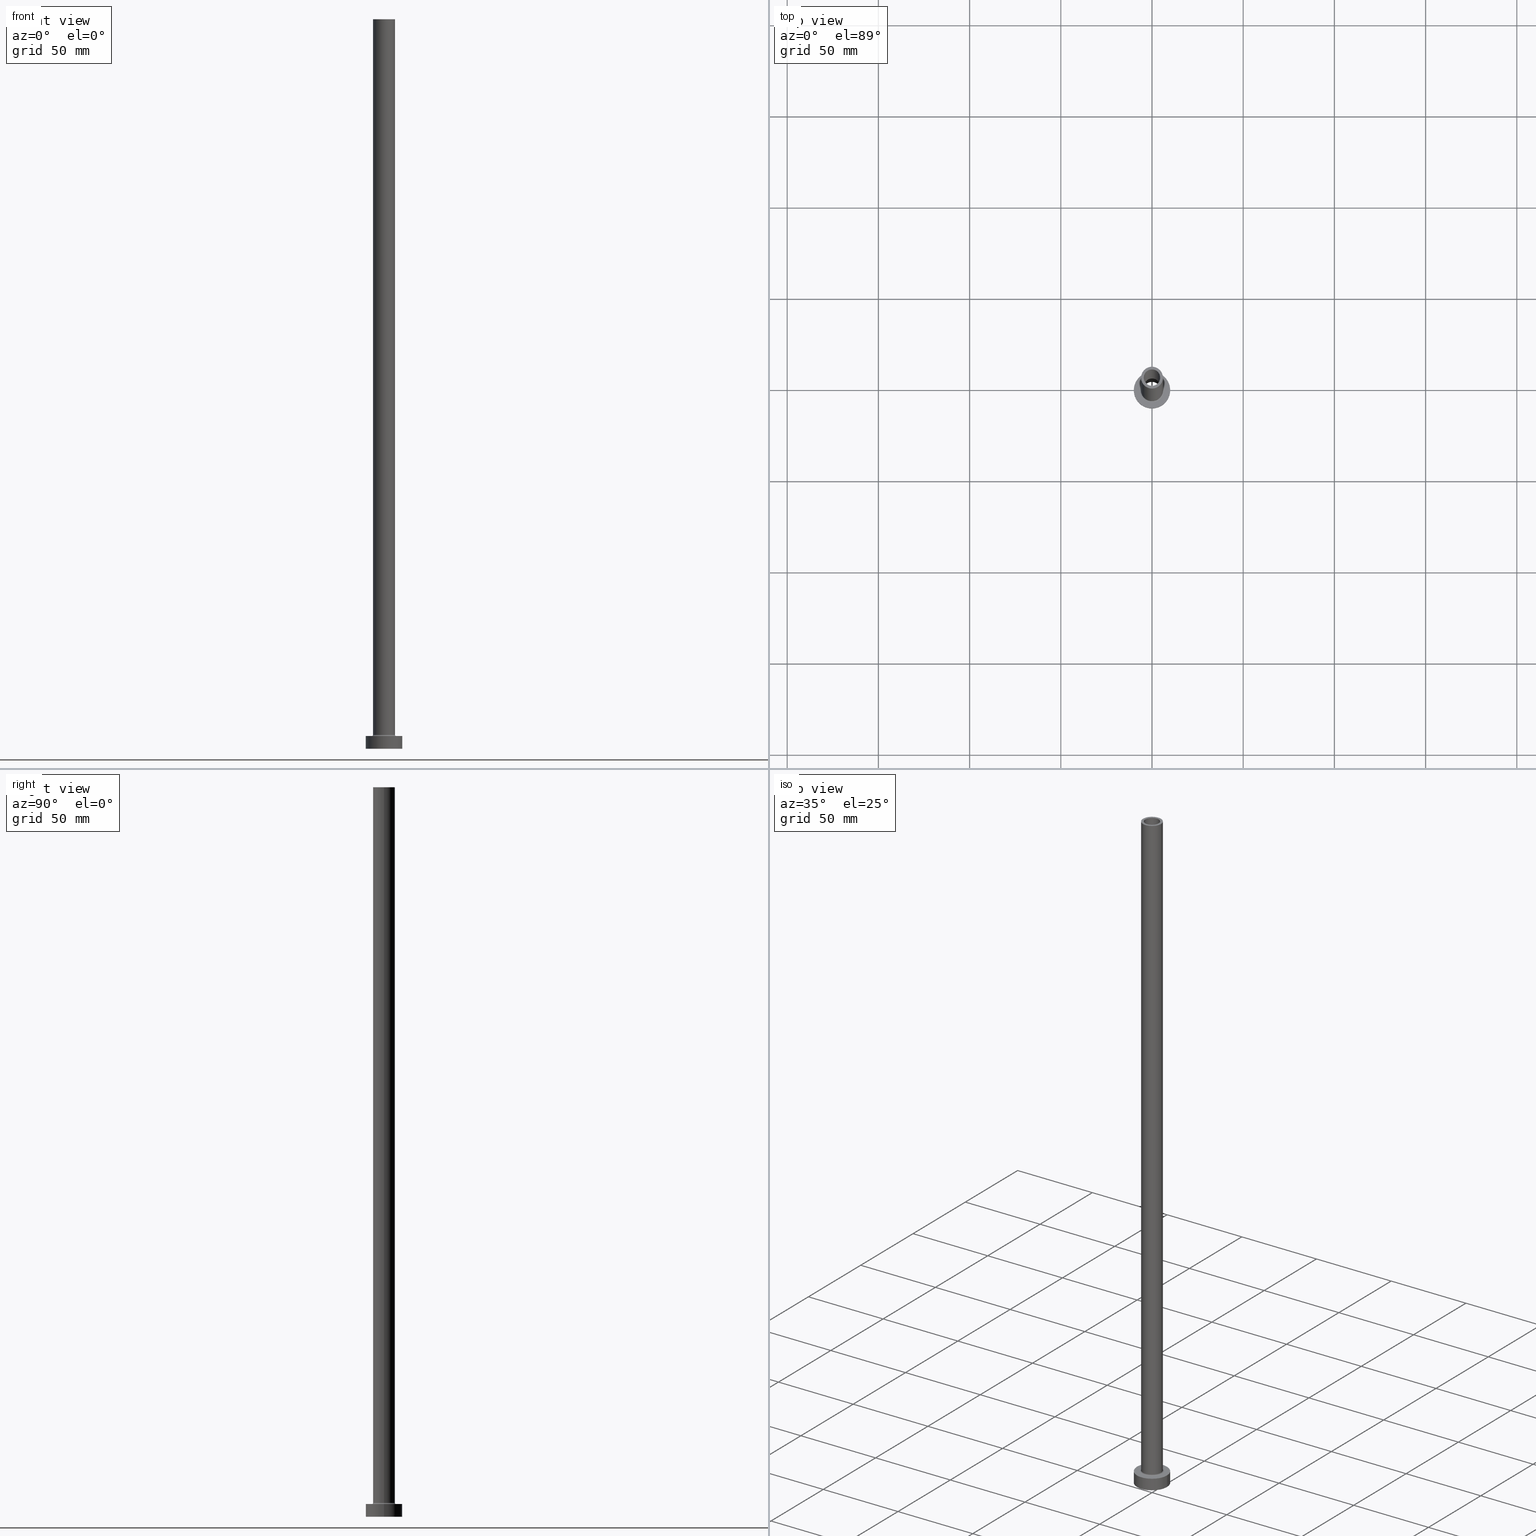
[diagram: canonical four-view strip — front | top / right | iso, engineering-drawing reading convention]
A machine part, canonical four-view strip (front | top / right | iso — engineering-drawing reading convention). The complete STEP part file that produces these views, byte-faithful:
ISO-10303-21;
HEADER;
FILE_DESCRIPTION (( 'STEP AP203' ),
    '1' );
FILE_NAME ('856f.STEP',
    '2023-02-13T11:01:17',
    ( '' ),
    ( '' ),
    'SwSTEP 2.0',
    'SolidWorks 2019',
    '' );
FILE_SCHEMA (( 'CONFIG_CONTROL_DESIGN' ));
ENDSEC;

DATA;
#1 = CYLINDRICAL_SURFACE ( 'NONE', #342, 10.00000000000000000 ) ;
#2 = CYLINDRICAL_SURFACE ( 'NONE', #440, 4.500000000000000000 ) ;
#3 = EDGE_CURVE ( 'NONE', #295, #27, #314, .T. ) ;
#4 = CIRCLE ( 'NONE', #43, 4.500000000000000000 ) ;
#5 = AXIS2_PLACEMENT_3D ( 'NONE', #294, #361, #45 ) ;
#6 = FACE_BOUND ( 'NONE', #320, .T. ) ;
#7 = DIRECTION ( 'NONE',  ( 1.000000000000000000, 0.000000000000000000, 0.000000000000000000 ) ) ;
#8 = PERSON ( 'NEUR�EN�', 'NEUR�EN�', 'NEUR�EN�', ('NEUR�EN�'), ('NEUR�EN�'), ('NEUR�EN�') ) ;
#9 = DIRECTION ( 'NONE',  ( 0.000000000000000000, 0.000000000000000000, 1.000000000000000000 ) ) ;
#10 = VERTEX_POINT ( 'NONE', #393 ) ;
#11 = PERSON_AND_ORGANIZATION_ROLE ( 'design_owner' ) ;
#12 = ORIENTED_EDGE ( 'NONE', *, *, #124, .T. ) ;
#13 = CIRCLE ( 'NONE', #302, 0.7000000000000000666 ) ;
#14 = CARTESIAN_POINT ( 'NONE',  ( 0.000000000000000000, 0.000000000000000000, 7.000000000000000000 ) ) ;
#15 = CARTESIAN_POINT ( 'NONE',  ( -10.00000000000000000, 0.000000000000000000, 7.000000000000000000 ) ) ;
#16 = AXIS2_PLACEMENT_3D ( 'NONE', #343, #305, #279 ) ;
#17 = EDGE_CURVE ( 'NONE', #46, #280, #232, .T. ) ;
#18 = DATE_AND_TIME ( #418, #113 ) ;
#19 = CARTESIAN_POINT ( 'NONE',  ( 0.000000000000000000, 0.000000000000000000, 355.0000000000000568 ) ) ;
#20 = CIRCLE ( 'NONE', #149, 6.000000000000000888 ) ;
#21 = PERSON_AND_ORGANIZATION ( #8, #65 ) ;
#22 = CYLINDRICAL_SURFACE ( 'NONE', #245, 10.00000000000000000 ) ;
#23 = DATE_AND_TIME ( #310, #157 ) ;
#24 = DIRECTION ( 'NONE',  ( 0.000000000000000000, 0.000000000000000000, 1.000000000000000000 ) ) ;
#25 = DIRECTION ( 'NONE',  ( 0.000000000000000000, 0.000000000000000000, 1.000000000000000000 ) ) ;
#26 = SECURITY_CLASSIFICATION ( '', '', #129 ) ;
#27 = VERTEX_POINT ( 'NONE', #184 ) ;
#28 = APPROVAL_ROLE ( '' ) ;
#29 = DIRECTION ( 'NONE',  ( 1.000000000000000000, 0.000000000000000000, -0.000000000000000000 ) ) ;
#30 = DIRECTION ( 'NONE',  ( 1.000000000000000000, 0.000000000000000000, 0.000000000000000000 ) ) ;
#31 = VERTEX_POINT ( 'NONE', #221 ) ;
#32 = DIRECTION ( 'NONE',  ( 1.000000000000000000, 0.000000000000000000, 0.000000000000000000 ) ) ;
#33 = EDGE_LOOP ( 'NONE', ( #264, #226 ) ) ;
#34 = CIRCLE ( 'NONE', #336, 0.7000000000000000666 ) ;
#35 = APPROVAL_PERSON_ORGANIZATION ( #133, #213, #277 ) ;
#36 = DIRECTION ( 'NONE',  ( 0.000000000000000000, 0.000000000000000000, 1.000000000000000000 ) ) ;
#37 = ORIENTED_EDGE ( 'NONE', *, *, #432, .T. ) ;
#38 = DIRECTION ( 'NONE',  ( -0.000000000000000000, -0.000000000000000000, -1.000000000000000000 ) ) ;
#39 = ADVANCED_FACE ( 'NONE', ( #323 ), #2, .F. ) ;
#40 = ORIENTED_EDGE ( 'NONE', *, *, #417, .T. ) ;
#41 = CARTESIAN_POINT ( 'NONE',  ( -10.00000000000000000, 0.000000000000000000, 7.000000000000000000 ) ) ;
#42 = VERTEX_POINT ( 'NONE', #293 ) ;
#43 = AXIS2_PLACEMENT_3D ( 'NONE', #205, #24, #130 ) ;
#44 = AXIS2_PLACEMENT_3D ( 'NONE', #375, #311, #102 ) ;
#45 = DIRECTION ( 'NONE',  ( 1.000000000000000000, 0.000000000000000000, 0.000000000000000000 ) ) ;
#46 = VERTEX_POINT ( 'NONE', #434 ) ;
#47 = CARTESIAN_POINT ( 'NONE',  ( 6.700000000000001066, 0.000000000000000000, 7.699999999999985079 ) ) ;
#48 = EDGE_LOOP ( 'NONE', ( #341, #142 ) ) ;
#49 = EDGE_CURVE ( 'NONE', #362, #295, #259, .T. ) ;
#50 = APPROVAL_ROLE ( '' ) ;
#51 = CARTESIAN_POINT ( 'NONE',  ( 0.000000000000000000, 0.000000000000000000, 0.000000000000000000 ) ) ;
#52 = AXIS2_PLACEMENT_3D ( 'NONE', #147, #181, #324 ) ;
#53 = ADVANCED_FACE ( 'NONE', ( #169 ), #108, .F. ) ;
#54 = CALENDAR_DATE ( 2023, 13, 2 ) ;
#55 = ORIENTED_EDGE ( 'NONE', *, *, #137, .F. ) ;
#56 = COORDINATED_UNIVERSAL_TIME_OFFSET ( 1, 0, .AHEAD. ) ;
#57 = DIRECTION ( 'NONE',  ( 0.000000000000000000, 0.000000000000000000, 1.000000000000000000 ) ) ;
#58 = CC_DESIGN_APPROVAL ( #453, ( #200 ) ) ;
#59 = CARTESIAN_POINT ( 'NONE',  ( 4.500000000000000000, 5.510910596163087583E-16, 400.0000000000000000 ) ) ;
#60 = CARTESIAN_POINT ( 'NONE',  ( 0.000000000000000000, 0.000000000000000000, 0.000000000000000000 ) ) ;
#61 = AXIS2_PLACEMENT_3D ( 'NONE', #199, #335, #7 ) ;
#62 = ORIENTED_EDGE ( 'NONE', *, *, #332, .F. ) ;
#63 = APPROVAL_STATUS ( 'not_yet_approved' ) ;
#64 = CARTESIAN_POINT ( 'NONE',  ( -4.650000000000000355, 0.000000000000000000, 355.0000000000000568 ) ) ;
#65 = ORGANIZATION ( 'NEUR�EN�', 'NEUR�EN�', '' ) ;
#66 = ORIENTED_EDGE ( 'NONE', *, *, #378, .T. ) ;
#67 = DIRECTION ( 'NONE',  ( 1.000000000000000000, 0.000000000000000000, 0.000000000000000000 ) ) ;
#68 = CC_DESIGN_PERSON_AND_ORGANIZATION_ASSIGNMENT ( #96, #92, ( #450 ) ) ;
#69 = ORIENTED_EDGE ( 'NONE', *, *, #247, .F. ) ;
#70 = DIRECTION ( 'NONE',  ( 1.000000000000000000, 0.000000000000000000, 0.000000000000000000 ) ) ;
#71 = ORIENTED_EDGE ( 'NONE', *, *, #397, .T. ) ;
#72 = DIRECTION ( 'NONE',  ( 0.000000000000000000, 0.000000000000000000, 1.000000000000000000 ) ) ;
#73 = ORIENTED_EDGE ( 'NONE', *, *, #410, .F. ) ;
#74 = VECTOR ( 'NONE', #176, 1000.000000000000000 ) ;
#75 = LINE ( 'NONE', #433, #188 ) ;
#76 = ORIENTED_EDGE ( 'NONE', *, *, #187, .T. ) ;
#77 = CC_DESIGN_PERSON_AND_ORGANIZATION_ASSIGNMENT ( #377, #369, ( #200 ) ) ;
#78 = FACE_OUTER_BOUND ( 'NONE', #173, .T. ) ;
#79 = DIRECTION ( 'NONE',  ( 0.000000000000000000, 0.000000000000000000, -1.000000000000000000 ) ) ;
#80 = DIRECTION ( 'NONE',  ( -0.000000000000000000, -0.000000000000000000, -1.000000000000000000 ) ) ;
#81 = ORIENTED_EDGE ( 'NONE', *, *, #160, .F. ) ;
#82 = CIRCLE ( 'NONE', #235, 6.000000000000000888 ) ;
#83 = VERTEX_POINT ( 'NONE', #64 ) ;
#84 = PERSON_AND_ORGANIZATION ( #8, #65 ) ;
#85 = VERTEX_POINT ( 'NONE', #93 ) ;
#86 =( LENGTH_UNIT ( ) NAMED_UNIT ( * ) SI_UNIT ( .MILLI., .METRE. ) );
#87 = CARTESIAN_POINT ( 'NONE',  ( 0.000000000000000000, 0.000000000000000000, 368.1521861300697651 ) ) ;
#88 = EDGE_CURVE ( 'NONE', #362, #122, #364, .T. ) ;
#89 = AXIS2_PLACEMENT_3D ( 'NONE', #110, #355, #457 ) ;
#90 = DATE_AND_TIME ( #238, #290 ) ;
#91 = FACE_OUTER_BOUND ( 'NONE', #155, .T. ) ;
#92 = PERSON_AND_ORGANIZATION_ROLE ( 'design_supplier' ) ;
#93 = CARTESIAN_POINT ( 'NONE',  ( -4.500000000000000000, 0.000000000000000000, 400.0000000000000000 ) ) ;
#94 = CIRCLE ( 'NONE', #350, 4.500000000000000000 ) ;
#95 = CC_DESIGN_PERSON_AND_ORGANIZATION_ASSIGNMENT ( #338, #198, ( #26 ) ) ;
#96 = PERSON_AND_ORGANIZATION ( #8, #65 ) ;
#97 = CARTESIAN_POINT ( 'NONE',  ( 0.000000000000000000, 0.000000000000000000, 400.0000000000000000 ) ) ;
#98 = DIRECTION ( 'NONE',  ( -1.000000000000000000, 0.000000000000000000, 0.000000000000000000 ) ) ;
#99 = AXIS2_PLACEMENT_3D ( 'NONE', #217, #328, #256 ) ;
#100 = ORIENTED_EDGE ( 'NONE', *, *, #124, .F. ) ;
#101 = CC_DESIGN_PERSON_AND_ORGANIZATION_ASSIGNMENT ( #21, #168, ( #450 ) ) ;
#102 = DIRECTION ( 'NONE',  ( -1.000000000000000000, 0.000000000000000000, 0.000000000000000000 ) ) ;
#103 = AXIS2_PLACEMENT_3D ( 'NONE', #460, #214, #30 ) ;
#104 = ORIENTED_EDGE ( 'NONE', *, *, #247, .T. ) ;
#105 = FACE_OUTER_BOUND ( 'NONE', #437, .T. ) ;
#106 = ORIENTED_EDGE ( 'NONE', *, *, #410, .T. ) ;
#107 = CARTESIAN_POINT ( 'NONE',  ( 0.000000000000000000, 0.000000000000000000, 7.000000000000000000 ) ) ;
#108 = TOROIDAL_SURFACE ( 'NONE', #272, 6.700000000000001066, 0.6999999999999999556 ) ;
#109 = EDGE_LOOP ( 'NONE', ( #318, #403 ) ) ;
#110 = CARTESIAN_POINT ( 'NONE',  ( 0.000000000000000000, 0.000000000000000000, 400.0000000000000000 ) ) ;
#111 = DESIGN_CONTEXT ( 'detailed design', #237, 'design' ) ;
#112 = EDGE_LOOP ( 'NONE', ( #435, #76, #326, #55 ) ) ;
#113 = LOCAL_TIME ( 12, 1, 17.00000000000000000, #56 ) ;
#114 = APPROVAL ( #334, 'NEUR�EN�' ) ;
#115 = CARTESIAN_POINT ( 'NONE',  ( -4.650000000000000355, 0.000000000000000000, 368.1521861300697651 ) ) ;
#116 = ORIENTED_EDGE ( 'NONE', *, *, #231, .T. ) ;
#117 = DIRECTION ( 'NONE',  ( 1.000000000000000000, 0.000000000000000000, 0.000000000000000000 ) ) ;
#118 = ORIENTED_EDGE ( 'NONE', *, *, #231, .F. ) ;
#119 = DIRECTION ( 'NONE',  ( 0.000000000000000000, 0.000000000000000000, -1.000000000000000000 ) ) ;
#120 = CC_DESIGN_DATE_AND_TIME_ASSIGNMENT ( #90, #230, ( #26 ) ) ;
#121 = ORIENTED_EDGE ( 'NONE', *, *, #17, .F. ) ;
#122 = VERTEX_POINT ( 'NONE', #379 ) ;
#123 = DIRECTION ( 'NONE',  ( -0.000000000000000000, -0.000000000000000000, -1.000000000000000000 ) ) ;
#124 = EDGE_CURVE ( 'NONE', #209, #83, #220, .T. ) ;
#125 = AXIS2_PLACEMENT_3D ( 'NONE', #452, #136, #449 ) ;
#126 = DIRECTION ( 'NONE',  ( 0.000000000000000000, 0.000000000000000000, 1.000000000000000000 ) ) ;
#127 = DIRECTION ( 'NONE',  ( -1.000000000000000000, 0.000000000000000000, 0.000000000000000000 ) ) ;
#128 = VECTOR ( 'NONE', #273, 1000.000000000000000 ) ;
#129 = SECURITY_CLASSIFICATION_LEVEL ( 'unclassified' ) ;
#130 = DIRECTION ( 'NONE',  ( 1.000000000000000000, 0.000000000000000000, 0.000000000000000000 ) ) ;
#131 = CARTESIAN_POINT ( 'NONE',  ( -6.000000000000000888, 0.000000000000000000, 400.0000000000000000 ) ) ;
#132 = ADVANCED_FACE ( 'NONE', ( #446 ), #206, .T. ) ;
#133 = PERSON_AND_ORGANIZATION ( #8, #65 ) ;
#134 = DIRECTION ( 'NONE',  ( 0.000000000000000000, 0.000000000000000000, 1.000000000000000000 ) ) ;
#135 = AXIS2_PLACEMENT_3D ( 'NONE', #248, #183, #143 ) ;
#136 = DIRECTION ( 'NONE',  ( 0.000000000000000000, 0.000000000000000000, 1.000000000000000000 ) ) ;
#137 = EDGE_CURVE ( 'NONE', #42, #10, #166, .T. ) ;
#138 = CARTESIAN_POINT ( 'NONE',  ( 0.000000000000000000, 0.000000000000000000, 400.0000000000000000 ) ) ;
#139 = ORIENTED_EDGE ( 'NONE', *, *, #270, .T. ) ;
#140 = DIRECTION ( 'NONE',  ( 0.000000000000000000, 0.000000000000000000, 1.000000000000000000 ) ) ;
#141 = CIRCLE ( 'NONE', #179, 4.500000000000000000 ) ;
#142 = ORIENTED_EDGE ( 'NONE', *, *, #265, .T. ) ;
#143 = DIRECTION ( 'NONE',  ( 1.000000000000000000, 0.000000000000000000, -0.000000000000000000 ) ) ;
#144 = EDGE_LOOP ( 'NONE', ( #291, #37, #116, #62 ) ) ;
#145 = FACE_OUTER_BOUND ( 'NONE', #48, .T. ) ;
#146 = ORIENTED_EDGE ( 'NONE', *, *, #88, .T. ) ;
#147 = CARTESIAN_POINT ( 'NONE',  ( 0.000000000000000000, 0.000000000000000000, 400.0000000000000000 ) ) ;
#148 = CARTESIAN_POINT ( 'NONE',  ( 0.000000000000000000, 0.000000000000000000, 400.0000000000000000 ) ) ;
#149 = AXIS2_PLACEMENT_3D ( 'NONE', #351, #425, #218 ) ;
#150 = CARTESIAN_POINT ( 'NONE',  ( 6.000000000000000888, 7.347880794884120722E-16, 400.0000000000000000 ) ) ;
#151 = DIRECTION ( 'NONE',  ( -1.000000000000000000, 0.000000000000000000, 0.000000000000000000 ) ) ;
#152 = EDGE_CURVE ( 'NONE', #456, #31, #420, .T. ) ;
#153 = ORIENTED_EDGE ( 'NONE', *, *, #322, .F. ) ;
#154 = MECHANICAL_CONTEXT ( 'NONE', #441, 'mechanical' ) ;
#155 = EDGE_LOOP ( 'NONE', ( #276, #12, #253, #284 ) ) ;
#156 = AXIS2_PLACEMENT_3D ( 'NONE', #51, #228, #296 ) ;
#157 = LOCAL_TIME ( 12, 1, 17.00000000000000000, #444 ) ;
#158 = CALENDAR_DATE ( 2023, 13, 2 ) ;
#159 = FACE_OUTER_BOUND ( 'NONE', #144, .T. ) ;
#160 = EDGE_CURVE ( 'NONE', #85, #10, #244, .T. ) ;
#161 = DIRECTION ( 'NONE',  ( 0.000000000000000000, 0.000000000000000000, -1.000000000000000000 ) ) ;
#162 = AXIS2_PLACEMENT_3D ( 'NONE', #60, #340, #67 ) ;
#163 = DIRECTION ( 'NONE',  ( -0.000000000000000000, -0.000000000000000000, -1.000000000000000000 ) ) ;
#164 = ADVANCED_FACE ( 'NONE', ( #239, #233 ), #278, .F. ) ;
#165 = DIRECTION ( 'NONE',  ( -1.000000000000000000, 0.000000000000000000, 0.000000000000000000 ) ) ;
#166 = CIRCLE ( 'NONE', #428, 4.500000000000000000 ) ;
#167 = FACE_OUTER_BOUND ( 'NONE', #349, .T. ) ;
#168 = PERSON_AND_ORGANIZATION_ROLE ( 'creator' ) ;
#169 = FACE_OUTER_BOUND ( 'NONE', #182, .T. ) ;
#170 =( GEOMETRIC_REPRESENTATION_CONTEXT ( 3 ) GLOBAL_UNCERTAINTY_ASSIGNED_CONTEXT ( ( #211 ) ) GLOBAL_UNIT_ASSIGNED_CONTEXT ( ( #86, #363, #189 ) ) REPRESENTATION_CONTEXT ( 'NONE', 'WORKASPACE' ) );
#171 = CC_DESIGN_SECURITY_CLASSIFICATION ( #26, ( #450 ) ) ;
#172 = ADVANCED_FACE ( 'NONE', ( #91 ), #208, .F. ) ;
#173 = EDGE_LOOP ( 'NONE', ( #400, #146 ) ) ;
#174 = DIRECTION ( 'NONE',  ( 0.000000000000000000, 0.000000000000000000, 1.000000000000000000 ) ) ;
#175 = ORIENTED_EDGE ( 'NONE', *, *, #270, .F. ) ;
#176 = DIRECTION ( 'NONE',  ( 0.000000000000000000, 0.000000000000000000, -1.000000000000000000 ) ) ;
#177 = DIRECTION ( 'NONE',  ( 1.224646799147353207E-16, 1.000000000000000000, -0.000000000000000000 ) ) ;
#178 = AXIS2_PLACEMENT_3D ( 'NONE', #210, #36, #319 ) ;
#179 = AXIS2_PLACEMENT_3D ( 'NONE', #266, #9, #406 ) ;
#180 = CC_DESIGN_PERSON_AND_ORGANIZATION_ASSIGNMENT ( #263, #11, ( #356 ) ) ;
#181 = DIRECTION ( 'NONE',  ( -0.000000000000000000, -0.000000000000000000, -1.000000000000000000 ) ) ;
#182 = EDGE_LOOP ( 'NONE', ( #345, #139, #421, #73 ) ) ;
#183 = DIRECTION ( 'NONE',  ( 0.000000000000000000, 0.000000000000000000, 1.000000000000000000 ) ) ;
#184 = CARTESIAN_POINT ( 'NONE',  ( -6.000000000000000888, 0.000000000000000000, 7.699999999999985079 ) ) ;
#185 = CARTESIAN_POINT ( 'NONE',  ( 4.650000000000000355, 5.694607616035192869E-16, 0.000000000000000000 ) ) ;
#186 = ORIENTED_EDGE ( 'NONE', *, *, #360, .F. ) ;
#187 = EDGE_CURVE ( 'NONE', #250, #85, #4, .T. ) ;
#188 = VECTOR ( 'NONE', #38, 1000.000000000000000 ) ;
#189 =( NAMED_UNIT ( * ) SI_UNIT ( $, .STERADIAN. ) SOLID_ANGLE_UNIT ( ) );
#190 = ORIENTED_EDGE ( 'NONE', *, *, #88, .F. ) ;
#191 = CARTESIAN_POINT ( 'NONE',  ( -6.700000000000001066, 8.205133554287267548E-16, 6.999999999999992006 ) ) ;
#192 = ORIENTED_EDGE ( 'NONE', *, *, #17, .T. ) ;
#193 = COORDINATED_UNIVERSAL_TIME_OFFSET ( 1, 0, .AHEAD. ) ;
#194 = CIRCLE ( 'NONE', #399, 6.700000000000001066 ) ;
#195 = CARTESIAN_POINT ( 'NONE',  ( 0.000000000000000000, 0.000000000000000000, 7.699999999999985079 ) ) ;
#196 = ADVANCED_FACE ( 'NONE', ( #167 ), #337, .F. ) ;
#197 = DIRECTION ( 'NONE',  ( 1.000000000000000000, 0.000000000000000000, 0.000000000000000000 ) ) ;
#198 = PERSON_AND_ORGANIZATION_ROLE ( 'classification_officer' ) ;
#199 = CARTESIAN_POINT ( 'NONE',  ( 0.000000000000000000, 0.000000000000000000, 7.699999999999985079 ) ) ;
#200 = PRODUCT_DEFINITION ( 'NEZN�M�', '', #450, #111 ) ;
#201 = SHAPE_DEFINITION_REPRESENTATION ( #387, #402 ) ;
#202 = CARTESIAN_POINT ( 'NONE',  ( 0.000000000000000000, 0.000000000000000000, 355.0000000000000568 ) ) ;
#203 = CARTESIAN_POINT ( 'NONE',  ( 0.000000000000000000, 0.000000000000000000, 400.0000000000000000 ) ) ;
#204 = DATE_TIME_ROLE ( 'creation_date' ) ;
#205 = CARTESIAN_POINT ( 'NONE',  ( 0.000000000000000000, 0.000000000000000000, 400.0000000000000000 ) ) ;
#206 = CYLINDRICAL_SURFACE ( 'NONE', #388, 6.000000000000000888 ) ;
#207 = AXIS2_PLACEMENT_3D ( 'NONE', #19, #57, #383 ) ;
#208 = CYLINDRICAL_SURFACE ( 'NONE', #413, 4.650000000000000355 ) ;
#209 = VERTEX_POINT ( 'NONE', #448 ) ;
#210 = CARTESIAN_POINT ( 'NONE',  ( 0.000000000000000000, 0.000000000000000000, 7.000000000000000000 ) ) ;
#211 = UNCERTAINTY_MEASURE_WITH_UNIT (LENGTH_MEASURE( 1.000000000000000082E-05 ), #86, 'distance_accuracy_value', 'NONE');
#212 = ORIENTED_EDGE ( 'NONE', *, *, #405, .T. ) ;
#213 = APPROVAL ( #63, 'NEUR�EN�' ) ;
#214 = DIRECTION ( 'NONE',  ( 0.000000000000000000, 0.000000000000000000, 1.000000000000000000 ) ) ;
#215 = CIRCLE ( 'NONE', #207, 4.650000000000000355 ) ;
#216 = CARTESIAN_POINT ( 'NONE',  ( 0.000000000000000000, 0.000000000000000000, 0.000000000000000000 ) ) ;
#217 = CARTESIAN_POINT ( 'NONE',  ( 0.000000000000000000, 0.000000000000000000, 0.000000000000000000 ) ) ;
#218 = DIRECTION ( 'NONE',  ( 1.000000000000000000, 0.000000000000000000, 0.000000000000000000 ) ) ;
#219 = EDGE_CURVE ( 'NONE', #83, #209, #215, .T. ) ;
#220 = CIRCLE ( 'NONE', #125, 4.650000000000000355 ) ;
#221 = CARTESIAN_POINT ( 'NONE',  ( 6.700000000000001066, 0.000000000000000000, 6.999999999999992006 ) ) ;
#222 = CARTESIAN_POINT ( 'NONE',  ( 6.000000000000000888, 7.347880794884120722E-16, 400.0000000000000000 ) ) ;
#223 = AXIS2_PLACEMENT_3D ( 'NONE', #251, #140, #348 ) ;
#224 = ORIENTED_EDGE ( 'NONE', *, *, #152, .T. ) ;
#225 = APPROVAL_STATUS ( 'not_yet_approved' ) ;
#226 = ORIENTED_EDGE ( 'NONE', *, *, #187, .F. ) ;
#227 = CC_DESIGN_DATE_AND_TIME_ASSIGNMENT ( #374, #204, ( #200 ) ) ;
#228 = DIRECTION ( 'NONE',  ( 0.000000000000000000, 0.000000000000000000, 1.000000000000000000 ) ) ;
#229 = AXIS2_PLACEMENT_3D ( 'NONE', #389, #72, #32 ) ;
#230 = DATE_TIME_ROLE ( 'classification_date' ) ;
#231 = EDGE_CURVE ( 'NONE', #386, #368, #274, .T. ) ;
#232 = CIRCLE ( 'NONE', #99, 10.00000000000000000 ) ;
#233 = FACE_OUTER_BOUND ( 'NONE', #357, .T. ) ;
#234 = AXIS2_PLACEMENT_3D ( 'NONE', #202, #134, #29 ) ;
#235 = AXIS2_PLACEMENT_3D ( 'NONE', #195, #126, #197 ) ;
#236 = DIRECTION ( 'NONE',  ( 1.000000000000000000, 0.000000000000000000, 0.000000000000000000 ) ) ;
#237 = APPLICATION_CONTEXT ( 'configuration controlled 3d designs of mechanical parts and assemblies' ) ;
#238 = CALENDAR_DATE ( 2023, 13, 2 ) ;
#239 = FACE_BOUND ( 'NONE', #109, .T. ) ;
#240 = EDGE_LOOP ( 'NONE', ( #121, #461 ) ) ;
#241 = ADVANCED_FACE ( 'NONE', ( #412 ), #22, .T. ) ;
#242 = DIRECTION ( 'NONE',  ( 1.000000000000000000, 0.000000000000000000, 0.000000000000000000 ) ) ;
#243 = EDGE_LOOP ( 'NONE', ( #429, #224 ) ) ;
#244 = LINE ( 'NONE', #275, #268 ) ;
#245 = AXIS2_PLACEMENT_3D ( 'NONE', #271, #163, #165 ) ;
#246 = FACE_BOUND ( 'NONE', #243, .T. ) ;
#247 = EDGE_CURVE ( 'NONE', #122, #27, #303, .T. ) ;
#248 = CARTESIAN_POINT ( 'NONE',  ( 0.000000000000000000, 0.000000000000000000, 7.000000000000000000 ) ) ;
#249 = CLOSED_SHELL ( 'NONE', ( #196, #445, #53, #132, #241, #297, #313, #390, #281, #339, #306, #172, #164, #39 ) ) ;
#250 = VERTEX_POINT ( 'NONE', #59 ) ;
#251 = CARTESIAN_POINT ( 'NONE',  ( 0.000000000000000000, 0.000000000000000000, 0.000000000000000000 ) ) ;
#252 = APPROVAL_PERSON_ORGANIZATION ( #308, #114, #28 ) ;
#253 = ORIENTED_EDGE ( 'NONE', *, *, #332, .T. ) ;
#254 = EDGE_CURVE ( 'NONE', #85, #250, #94, .T. ) ;
#255 = PLANE ( 'NONE',  #89 ) ;
#256 = DIRECTION ( 'NONE',  ( 1.000000000000000000, 0.000000000000000000, 0.000000000000000000 ) ) ;
#257 = FACE_OUTER_BOUND ( 'NONE', #240, .T. ) ;
#258 = AXIS2_PLACEMENT_3D ( 'NONE', #97, #174, #415 ) ;
#259 = LINE ( 'NONE', #222, #411 ) ;
#260 = CARTESIAN_POINT ( 'NONE',  ( 4.650000000000000355, 5.694607616035192869E-16, 368.1521861300697651 ) ) ;
#261 = EDGE_LOOP ( 'NONE', ( #190, #416, #458, #69 ) ) ;
#262 = LOCAL_TIME ( 12, 1, 17.00000000000000000, #193 ) ;
#263 = PERSON_AND_ORGANIZATION ( #8, #65 ) ;
#264 = ORIENTED_EDGE ( 'NONE', *, *, #254, .F. ) ;
#265 = EDGE_CURVE ( 'NONE', #354, #380, #372, .T. ) ;
#266 = CARTESIAN_POINT ( 'NONE',  ( 0.000000000000000000, 0.000000000000000000, 355.0000000000000568 ) ) ;
#267 = LINE ( 'NONE', #260, #414 ) ;
#268 = VECTOR ( 'NONE', #304, 1000.000000000000000 ) ;
#269 = APPLICATION_PROTOCOL_DEFINITION ( 'international standard', 'config_control_design', 1994, #441 ) ;
#270 = EDGE_CURVE ( 'NONE', #27, #456, #13, .T. ) ;
#271 = CARTESIAN_POINT ( 'NONE',  ( 0.000000000000000000, 0.000000000000000000, 7.000000000000000000 ) ) ;
#272 = AXIS2_PLACEMENT_3D ( 'NONE', #455, #422, #242 ) ;
#273 = DIRECTION ( 'NONE',  ( -0.000000000000000000, -0.000000000000000000, -1.000000000000000000 ) ) ;
#274 = CIRCLE ( 'NONE', #162, 4.650000000000000355 ) ;
#275 = CARTESIAN_POINT ( 'NONE',  ( -4.500000000000000000, 0.000000000000000000, 400.0000000000000000 ) ) ;
#276 = ORIENTED_EDGE ( 'NONE', *, *, #432, .F. ) ;
#277 = APPROVAL_ROLE ( '' ) ;
#278 = PLANE ( 'NONE',  #234 ) ;
#279 = DIRECTION ( 'NONE',  ( 1.000000000000000000, 0.000000000000000000, 0.000000000000000000 ) ) ;
#280 = VERTEX_POINT ( 'NONE', #285 ) ;
#281 = ADVANCED_FACE ( 'NONE', ( #426 ), #346, .T. ) ;
#282 = PLANE ( 'NONE',  #135 ) ;
#283 = CIRCLE ( 'NONE', #358, 4.650000000000000355 ) ;
#284 = ORIENTED_EDGE ( 'NONE', *, *, #322, .T. ) ;
#285 = CARTESIAN_POINT ( 'NONE',  ( 10.00000000000000000, 1.224646799147353256E-15, 0.000000000000000000 ) ) ;
#286 = ORIENTED_EDGE ( 'NONE', *, *, #219, .F. ) ;
#287 = LINE ( 'NONE', #115, #74 ) ;
#288 = ORIENTED_EDGE ( 'NONE', *, *, #352, .F. ) ;
#289 = MANIFOLD_SOLID_BREP ( 'Odebrat vysunut�m4', #249 ) ;
#290 = LOCAL_TIME ( 12, 1, 17.00000000000000000, #367 ) ;
#291 = ORIENTED_EDGE ( 'NONE', *, *, #219, .T. ) ;
#292 = CARTESIAN_POINT ( 'NONE',  ( -6.700000000000001066, 8.205133554287267548E-16, 7.699999999999985079 ) ) ;
#293 = CARTESIAN_POINT ( 'NONE',  ( 4.500000000000000000, 5.510910596163087583E-16, 355.0000000000000568 ) ) ;
#294 = CARTESIAN_POINT ( 'NONE',  ( 0.000000000000000000, 0.000000000000000000, 0.000000000000000000 ) ) ;
#295 = VERTEX_POINT ( 'NONE', #317 ) ;
#296 = DIRECTION ( 'NONE',  ( 1.000000000000000000, 0.000000000000000000, -0.000000000000000000 ) ) ;
#297 = ADVANCED_FACE ( 'NONE', ( #105 ), #1, .T. ) ;
#298 = ORIENTED_EDGE ( 'NONE', *, *, #49, .F. ) ;
#299 = DATE_AND_TIME ( #158, #262 ) ;
#300 = PRODUCT_RELATED_PRODUCT_CATEGORY ( 'detail', '', ( #356 ) ) ;
#301 = CYLINDRICAL_SURFACE ( 'NONE', #325, 4.650000000000000355 ) ;
#302 = AXIS2_PLACEMENT_3D ( 'NONE', #292, #177, #353 ) ;
#303 = LINE ( 'NONE', #131, #128 ) ;
#304 = DIRECTION ( 'NONE',  ( 0.000000000000000000, 0.000000000000000000, -1.000000000000000000 ) ) ;
#305 = DIRECTION ( 'NONE',  ( -0.000000000000000000, -0.000000000000000000, -1.000000000000000000 ) ) ;
#306 = ADVANCED_FACE ( 'NONE', ( #459 ), #407, .F. ) ;
#307 = VECTOR ( 'NONE', #161, 1000.000000000000000 ) ;
#308 = PERSON_AND_ORGANIZATION ( #8, #65 ) ;
#309 = CARTESIAN_POINT ( 'NONE',  ( 0.000000000000000000, 0.000000000000000000, 355.0000000000000568 ) ) ;
#310 = CALENDAR_DATE ( 2023, 13, 2 ) ;
#311 = DIRECTION ( 'NONE',  ( 0.000000000000000000, 0.000000000000000000, -1.000000000000000000 ) ) ;
#312 = ORIENTED_EDGE ( 'NONE', *, *, #3, .F. ) ;
#313 = ADVANCED_FACE ( 'NONE', ( #246, #145 ), #282, .T. ) ;
#314 = CIRCLE ( 'NONE', #61, 6.000000000000000888 ) ;
#315 = FACE_BOUND ( 'NONE', #33, .T. ) ;
#316 = ORIENTED_EDGE ( 'NONE', *, *, #378, .F. ) ;
#317 = CARTESIAN_POINT ( 'NONE',  ( 6.000000000000000888, 7.347880794884120722E-16, 7.699999999999985079 ) ) ;
#318 = ORIENTED_EDGE ( 'NONE', *, *, #427, .T. ) ;
#319 = DIRECTION ( 'NONE',  ( 1.000000000000000000, 0.000000000000000000, 0.000000000000000000 ) ) ;
#320 = EDGE_LOOP ( 'NONE', ( #153, #118 ) ) ;
#321 = DIRECTION ( 'NONE',  ( 0.000000000000000000, 0.000000000000000000, 1.000000000000000000 ) ) ;
#322 = EDGE_CURVE ( 'NONE', #368, #386, #283, .T. ) ;
#323 = FACE_OUTER_BOUND ( 'NONE', #112, .T. ) ;
#324 = DIRECTION ( 'NONE',  ( -1.000000000000000000, 0.000000000000000000, 0.000000000000000000 ) ) ;
#325 = AXIS2_PLACEMENT_3D ( 'NONE', #87, #119, #127 ) ;
#326 = ORIENTED_EDGE ( 'NONE', *, *, #160, .T. ) ;
#327 = LINE ( 'NONE', #365, #307 ) ;
#328 = DIRECTION ( 'NONE',  ( 0.000000000000000000, 0.000000000000000000, 1.000000000000000000 ) ) ;
#329 = EDGE_LOOP ( 'NONE', ( #431, #66, #395, #384 ) ) ;
#330 = DIRECTION ( 'NONE',  ( -0.000000000000000000, -0.000000000000000000, -1.000000000000000000 ) ) ;
#331 = DIRECTION ( 'NONE',  ( 0.000000000000000000, 0.000000000000000000, -1.000000000000000000 ) ) ;
#332 = EDGE_CURVE ( 'NONE', #83, #368, #287, .T. ) ;
#333 = DIRECTION ( 'NONE',  ( 1.000000000000000000, 0.000000000000000000, 0.000000000000000000 ) ) ;
#334 = APPROVAL_STATUS ( 'not_yet_approved' ) ;
#335 = DIRECTION ( 'NONE',  ( 0.000000000000000000, 0.000000000000000000, 1.000000000000000000 ) ) ;
#336 = AXIS2_PLACEMENT_3D ( 'NONE', #47, #442, #404 ) ;
#337 = CYLINDRICAL_SURFACE ( 'NONE', #44, 4.500000000000000000 ) ;
#338 = PERSON_AND_ORGANIZATION ( #8, #65 ) ;
#339 = ADVANCED_FACE ( 'NONE', ( #315, #78 ), #255, .T. ) ;
#340 = DIRECTION ( 'NONE',  ( -0.000000000000000000, -0.000000000000000000, -1.000000000000000000 ) ) ;
#341 = ORIENTED_EDGE ( 'NONE', *, *, #352, .T. ) ;
#342 = AXIS2_PLACEMENT_3D ( 'NONE', #107, #80, #430 ) ;
#343 = CARTESIAN_POINT ( 'NONE',  ( 0.000000000000000000, 0.000000000000000000, 7.000000000000000000 ) ) ;
#344 = EDGE_CURVE ( 'NONE', #280, #46, #424, .T. ) ;
#345 = ORIENTED_EDGE ( 'NONE', *, *, #397, .F. ) ;
#346 = CYLINDRICAL_SURFACE ( 'NONE', #52, 6.000000000000000888 ) ;
#347 = ORIENTED_EDGE ( 'NONE', *, *, #254, .T. ) ;
#348 = DIRECTION ( 'NONE',  ( 1.000000000000000000, 0.000000000000000000, 0.000000000000000000 ) ) ;
#349 = EDGE_LOOP ( 'NONE', ( #347, #212, #423, #81 ) ) ;
#350 = AXIS2_PLACEMENT_3D ( 'NONE', #203, #321, #117 ) ;
#351 = CARTESIAN_POINT ( 'NONE',  ( 0.000000000000000000, 0.000000000000000000, 400.0000000000000000 ) ) ;
#352 = EDGE_CURVE ( 'NONE', #380, #354, #381, .T. ) ;
#353 = DIRECTION ( 'NONE',  ( -1.000000000000000000, 1.224646799147353454E-16, 0.000000000000000000 ) ) ;
#354 = VERTEX_POINT ( 'NONE', #394 ) ;
#355 = DIRECTION ( 'NONE',  ( 0.000000000000000000, 0.000000000000000000, 1.000000000000000000 ) ) ;
#356 = PRODUCT ( '856f', '856f', '', ( #154 ) ) ;
#357 = EDGE_LOOP ( 'NONE', ( #286, #100 ) ) ;
#358 = AXIS2_PLACEMENT_3D ( 'NONE', #216, #385, #70 ) ;
#359 = DIRECTION ( 'NONE',  ( -0.000000000000000000, -0.000000000000000000, -1.000000000000000000 ) ) ;
#360 = EDGE_CURVE ( 'NONE', #122, #362, #20, .T. ) ;
#361 = DIRECTION ( 'NONE',  ( 0.000000000000000000, 0.000000000000000000, 1.000000000000000000 ) ) ;
#362 = VERTEX_POINT ( 'NONE', #150 ) ;
#363 =( NAMED_UNIT ( * ) PLANE_ANGLE_UNIT ( ) SI_UNIT ( $, .RADIAN. ) );
#364 = CIRCLE ( 'NONE', #258, 6.000000000000000888 ) ;
#365 = CARTESIAN_POINT ( 'NONE',  ( 4.500000000000000000, 5.510910596163087583E-16, 400.0000000000000000 ) ) ;
#366 = CC_DESIGN_APPROVAL ( #114, ( #450 ) ) ;
#367 = COORDINATED_UNIVERSAL_TIME_OFFSET ( 1, 0, .AHEAD. ) ;
#368 = VERTEX_POINT ( 'NONE', #392 ) ;
#369 = PERSON_AND_ORGANIZATION_ROLE ( 'creator' ) ;
#370 = CARTESIAN_POINT ( 'NONE',  ( 0.000000000000000000, 0.000000000000000000, 368.1521861300697651 ) ) ;
#371 = LOCAL_TIME ( 12, 1, 17.00000000000000000, #408 ) ;
#372 = CIRCLE ( 'NONE', #178, 10.00000000000000000 ) ;
#373 = DIRECTION ( 'NONE',  ( -1.000000000000000000, 0.000000000000000000, 0.000000000000000000 ) ) ;
#374 = DATE_AND_TIME ( #54, #371 ) ;
#375 = CARTESIAN_POINT ( 'NONE',  ( 0.000000000000000000, 0.000000000000000000, 400.0000000000000000 ) ) ;
#376 = EDGE_LOOP ( 'NONE', ( #298, #186, #104, #71 ) ) ;
#377 = PERSON_AND_ORGANIZATION ( #8, #65 ) ;
#378 = EDGE_CURVE ( 'NONE', #354, #280, #75, .T. ) ;
#379 = CARTESIAN_POINT ( 'NONE',  ( -6.000000000000000888, 0.000000000000000000, 400.0000000000000000 ) ) ;
#380 = VERTEX_POINT ( 'NONE', #41 ) ;
#381 = CIRCLE ( 'NONE', #229, 10.00000000000000000 ) ;
#382 = CC_DESIGN_APPROVAL ( #213, ( #26 ) ) ;
#383 = DIRECTION ( 'NONE',  ( 1.000000000000000000, 0.000000000000000000, 0.000000000000000000 ) ) ;
#384 = ORIENTED_EDGE ( 'NONE', *, *, #417, .F. ) ;
#385 = DIRECTION ( 'NONE',  ( -0.000000000000000000, -0.000000000000000000, -1.000000000000000000 ) ) ;
#386 = VERTEX_POINT ( 'NONE', #185 ) ;
#387 = PRODUCT_DEFINITION_SHAPE ( 'NONE', 'NONE',  #200 ) ;
#388 = AXIS2_PLACEMENT_3D ( 'NONE', #138, #409, #373 ) ;
#389 = CARTESIAN_POINT ( 'NONE',  ( 0.000000000000000000, 0.000000000000000000, 7.000000000000000000 ) ) ;
#390 = ADVANCED_FACE ( 'NONE', ( #6, #257 ), #396, .F. ) ;
#391 = VECTOR ( 'NONE', #330, 1000.000000000000000 ) ;
#392 = CARTESIAN_POINT ( 'NONE',  ( -4.650000000000000355, 0.000000000000000000, 0.000000000000000000 ) ) ;
#393 = CARTESIAN_POINT ( 'NONE',  ( -4.500000000000000000, 0.000000000000000000, 355.0000000000000568 ) ) ;
#394 = CARTESIAN_POINT ( 'NONE',  ( 10.00000000000000000, 1.224646799147353256E-15, 7.000000000000000000 ) ) ;
#395 = ORIENTED_EDGE ( 'NONE', *, *, #344, .T. ) ;
#396 = PLANE ( 'NONE',  #156 ) ;
#397 = EDGE_CURVE ( 'NONE', #27, #295, #82, .T. ) ;
#398 = EDGE_LOOP ( 'NONE', ( #175, #312, #106, #454 ) ) ;
#399 = AXIS2_PLACEMENT_3D ( 'NONE', #14, #123, #333 ) ;
#400 = ORIENTED_EDGE ( 'NONE', *, *, #360, .T. ) ;
#401 = LINE ( 'NONE', #15, #391 ) ;
#402 = ADVANCED_BREP_SHAPE_REPRESENTATION ( '856f', ( #289, #5 ), #170 ) ;
#403 = ORIENTED_EDGE ( 'NONE', *, *, #137, .T. ) ;
#404 = DIRECTION ( 'NONE',  ( 0.000000000000000000, 0.000000000000000000, -1.000000000000000000 ) ) ;
#405 = EDGE_CURVE ( 'NONE', #250, #42, #327, .T. ) ;
#406 = DIRECTION ( 'NONE',  ( 1.000000000000000000, 0.000000000000000000, 0.000000000000000000 ) ) ;
#407 = TOROIDAL_SURFACE ( 'NONE', #103, 6.700000000000001066, 0.6999999999999999556 ) ;
#408 = COORDINATED_UNIVERSAL_TIME_OFFSET ( 1, 0, .AHEAD. ) ;
#409 = DIRECTION ( 'NONE',  ( -0.000000000000000000, -0.000000000000000000, -1.000000000000000000 ) ) ;
#410 = EDGE_CURVE ( 'NONE', #295, #31, #34, .T. ) ;
#411 = VECTOR ( 'NONE', #359, 1000.000000000000000 ) ;
#412 = FACE_OUTER_BOUND ( 'NONE', #329, .T. ) ;
#413 = AXIS2_PLACEMENT_3D ( 'NONE', #370, #419, #98 ) ;
#414 = VECTOR ( 'NONE', #331, 1000.000000000000000 ) ;
#415 = DIRECTION ( 'NONE',  ( 1.000000000000000000, 0.000000000000000000, 0.000000000000000000 ) ) ;
#416 = ORIENTED_EDGE ( 'NONE', *, *, #49, .T. ) ;
#417 = EDGE_CURVE ( 'NONE', #380, #46, #401, .T. ) ;
#418 = CALENDAR_DATE ( 2023, 13, 2 ) ;
#419 = DIRECTION ( 'NONE',  ( 0.000000000000000000, 0.000000000000000000, -1.000000000000000000 ) ) ;
#420 = CIRCLE ( 'NONE', #16, 6.700000000000001066 ) ;
#421 = ORIENTED_EDGE ( 'NONE', *, *, #439, .F. ) ;
#422 = DIRECTION ( 'NONE',  ( 0.000000000000000000, 0.000000000000000000, 1.000000000000000000 ) ) ;
#423 = ORIENTED_EDGE ( 'NONE', *, *, #427, .F. ) ;
#424 = CIRCLE ( 'NONE', #223, 10.00000000000000000 ) ;
#425 = DIRECTION ( 'NONE',  ( 0.000000000000000000, 0.000000000000000000, 1.000000000000000000 ) ) ;
#426 = FACE_OUTER_BOUND ( 'NONE', #376, .T. ) ;
#427 = EDGE_CURVE ( 'NONE', #10, #42, #141, .T. ) ;
#428 = AXIS2_PLACEMENT_3D ( 'NONE', #309, #25, #236 ) ;
#429 = ORIENTED_EDGE ( 'NONE', *, *, #439, .T. ) ;
#430 = DIRECTION ( 'NONE',  ( -1.000000000000000000, 0.000000000000000000, 0.000000000000000000 ) ) ;
#431 = ORIENTED_EDGE ( 'NONE', *, *, #265, .F. ) ;
#432 = EDGE_CURVE ( 'NONE', #209, #386, #267, .T. ) ;
#433 = CARTESIAN_POINT ( 'NONE',  ( 10.00000000000000000, 1.224646799147353256E-15, 7.000000000000000000 ) ) ;
#434 = CARTESIAN_POINT ( 'NONE',  ( -10.00000000000000000, 0.000000000000000000, 0.000000000000000000 ) ) ;
#435 = ORIENTED_EDGE ( 'NONE', *, *, #405, .F. ) ;
#436 = APPLICATION_PROTOCOL_DEFINITION ( 'international standard', 'config_control_design', 1994, #237 ) ;
#437 = EDGE_LOOP ( 'NONE', ( #316, #288, #40, #192 ) ) ;
#438 = APPROVAL_DATE_TIME ( #299, #453 ) ;
#439 = EDGE_CURVE ( 'NONE', #31, #456, #194, .T. ) ;
#440 = AXIS2_PLACEMENT_3D ( 'NONE', #148, #79, #151 ) ;
#441 = APPLICATION_CONTEXT ( 'configuration controlled 3d designs of mechanical parts and assemblies' ) ;
#442 = DIRECTION ( 'NONE',  ( 0.000000000000000000, -1.000000000000000000, 0.000000000000000000 ) ) ;
#443 = APPROVAL_PERSON_ORGANIZATION ( #84, #453, #50 ) ;
#444 = COORDINATED_UNIVERSAL_TIME_OFFSET ( 1, 0, .AHEAD. ) ;
#445 = ADVANCED_FACE ( 'NONE', ( #159 ), #301, .F. ) ;
#446 = FACE_OUTER_BOUND ( 'NONE', #261, .T. ) ;
#447 = APPROVAL_DATE_TIME ( #23, #213 ) ;
#448 = CARTESIAN_POINT ( 'NONE',  ( 4.650000000000000355, 5.694607616035192869E-16, 355.0000000000000568 ) ) ;
#449 = DIRECTION ( 'NONE',  ( 1.000000000000000000, 0.000000000000000000, 0.000000000000000000 ) ) ;
#450 = PRODUCT_DEFINITION_FORMATION_WITH_SPECIFIED_SOURCE ( 'LIBOVOLN�', '', #356, .NOT_KNOWN. ) ;
#451 = APPROVAL_DATE_TIME ( #18, #114 ) ;
#452 = CARTESIAN_POINT ( 'NONE',  ( 0.000000000000000000, 0.000000000000000000, 355.0000000000000568 ) ) ;
#453 = APPROVAL ( #225, 'NEUR�EN�' ) ;
#454 = ORIENTED_EDGE ( 'NONE', *, *, #152, .F. ) ;
#455 = CARTESIAN_POINT ( 'NONE',  ( 0.000000000000000000, 0.000000000000000000, 7.699999999999985079 ) ) ;
#456 = VERTEX_POINT ( 'NONE', #191 ) ;
#457 = DIRECTION ( 'NONE',  ( 1.000000000000000000, 0.000000000000000000, -0.000000000000000000 ) ) ;
#458 = ORIENTED_EDGE ( 'NONE', *, *, #3, .T. ) ;
#459 = FACE_OUTER_BOUND ( 'NONE', #398, .T. ) ;
#460 = CARTESIAN_POINT ( 'NONE',  ( 0.000000000000000000, 0.000000000000000000, 7.699999999999985079 ) ) ;
#461 = ORIENTED_EDGE ( 'NONE', *, *, #344, .F. ) ;
ENDSEC;
END-ISO-10303-21;
